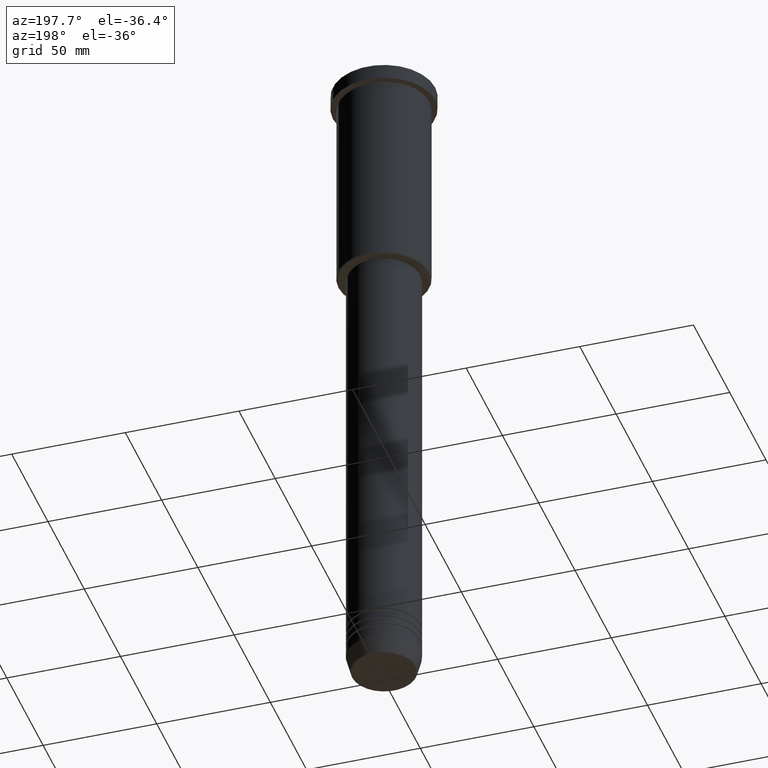
[diagram: clean part render]
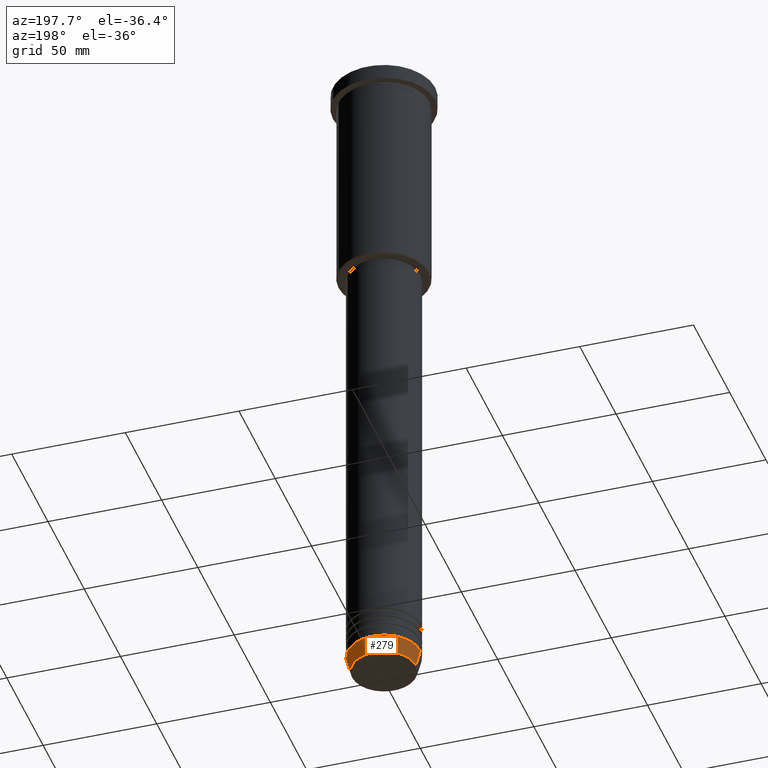
[diagram: same view with one face highlighted and labeled with its STEP entity id]
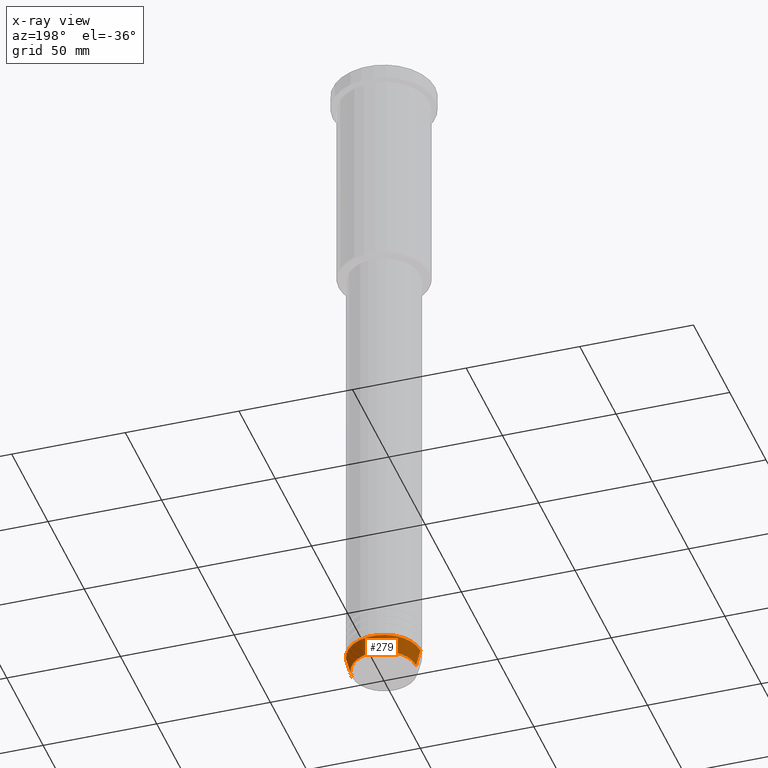
[diagram: x-ray of the same camera — body ghosted, the highlighted face saturated]
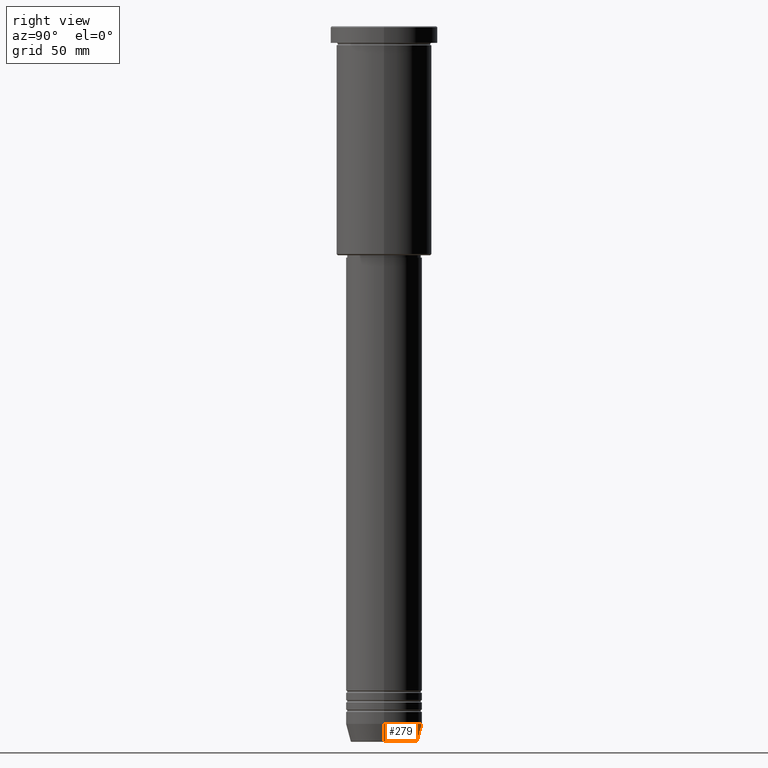
[diagram: same view with one face highlighted and labeled with its STEP entity id]
A machine part, auxiliary view. The second image highlights one B-rep face of the part: STEP entity #279.
The next image is the same camera in x-ray: the body ghosted, the highlighted face saturated — about 0% of this face is hidden behind the body in this view.
A second angle (right view) of the same face is appended — the face is thin or edge-on in the first view.
In plain terms, the highlighted conical surface has half-angle 15 deg.
Its self-contained STEP definition (entity closure, byte-faithful):
#1 = DIRECTION ( 'NONE',  ( 1.000000000000000000, 0.000000000000000000, 0.000000000000000000 ) ) ;
#15 = EDGE_CURVE ( 'NONE', #1108, #411, #901, .T. ) ;
#26 = VERTEX_POINT ( 'NONE', #873 ) ;
#27 = VECTOR ( 'NONE', #428, 1000.000000000000000 ) ;
#61 = ORIENTED_EDGE ( 'NONE', *, *, #15, .F. ) ;
#82 = AXIS2_PLACEMENT_3D ( 'NONE', #1137, #954, #406 ) ;
#93 = DIRECTION ( 'NONE',  ( 0.2588190451025213501, 0.000000000000000000, 0.9659258262890680902 ) ) ;
#148 = CARTESIAN_POINT ( 'NONE',  ( -14.08968047592161632, 1.842461544110200874E-15, -299.6294095225512137 ) ) ;
#158 = CARTESIAN_POINT ( 'NONE',  ( 0.000000000000000000, 0.000000000000000000, -299.6294095225512137 ) ) ;
#166 = CONICAL_SURFACE ( 'NONE', #384, 16.00000000000000000, 0.2617993877991500740 ) ;
#214 = ORIENTED_EDGE ( 'NONE', *, *, #548, .T. ) ;
#236 = LINE ( 'NONE', #1165, #27 ) ;
#279 = ADVANCED_FACE ( 'NONE', ( #650 ), #166, .T. ) ;
#329 = AXIS2_PLACEMENT_3D ( 'NONE', #158, #979, #883 ) ;
#356 = CARTESIAN_POINT ( 'NONE',  ( 0.000000000000000000, 0.000000000000000000, -292.5000000000000000 ) ) ;
#384 = AXIS2_PLACEMENT_3D ( 'NONE', #356, #1010, #1 ) ;
#396 = EDGE_CURVE ( 'NONE', #517, #411, #236, .T. ) ;
#406 = DIRECTION ( 'NONE',  ( 1.000000000000000000, 0.000000000000000000, 0.000000000000000000 ) ) ;
#411 = VERTEX_POINT ( 'NONE', #887 ) ;
#427 = EDGE_LOOP ( 'NONE', ( #214, #715, #61, #448 ) ) ;
#428 = DIRECTION ( 'NONE',  ( -0.2588190451025213501, 3.169619151431772337E-17, 0.9659258262890680902 ) ) ;
#448 = ORIENTED_EDGE ( 'NONE', *, *, #654, .F. ) ;
#517 = VERTEX_POINT ( 'NONE', #148 ) ;
#548 = EDGE_CURVE ( 'NONE', #26, #517, #707, .T. ) ;
#550 = CARTESIAN_POINT ( 'NONE',  ( 16.00000000000000000, 0.000000000000000000, -292.5000000000000000 ) ) ;
#650 = FACE_OUTER_BOUND ( 'NONE', #427, .T. ) ;
#654 = EDGE_CURVE ( 'NONE', #26, #1108, #912, .T. ) ;
#707 = CIRCLE ( 'NONE', #329, 14.08968047592161632 ) ;
#715 = ORIENTED_EDGE ( 'NONE', *, *, #396, .T. ) ;
#801 = VECTOR ( 'NONE', #93, 1000.000000000000000 ) ;
#873 = CARTESIAN_POINT ( 'NONE',  ( 14.08968047592161632, 0.000000000000000000, -299.6294095225512137 ) ) ;
#883 = DIRECTION ( 'NONE',  ( 1.000000000000000000, 0.000000000000000000, 0.000000000000000000 ) ) ;
#887 = CARTESIAN_POINT ( 'NONE',  ( -16.00000000000000000, 1.959434878635765131E-15, -292.5000000000000000 ) ) ;
#901 = CIRCLE ( 'NONE', #82, 16.00000000000000000 ) ;
#912 = LINE ( 'NONE', #1021, #801 ) ;
#954 = DIRECTION ( 'NONE',  ( -0.000000000000000000, -0.000000000000000000, 1.000000000000000000 ) ) ;
#979 = DIRECTION ( 'NONE',  ( -0.000000000000000000, -0.000000000000000000, 1.000000000000000000 ) ) ;
#1010 = DIRECTION ( 'NONE',  ( -0.000000000000000000, -0.000000000000000000, 1.000000000000000000 ) ) ;
#1021 = CARTESIAN_POINT ( 'NONE',  ( 16.00000000000000000, 0.000000000000000000, -292.5000000000000000 ) ) ;
#1108 = VERTEX_POINT ( 'NONE', #550 ) ;
#1137 = CARTESIAN_POINT ( 'NONE',  ( 0.000000000000000000, 0.000000000000000000, -292.5000000000000000 ) ) ;
#1165 = CARTESIAN_POINT ( 'NONE',  ( -16.00000000000000000, 1.959434878635765131E-15, -292.5000000000000000 ) ) ;